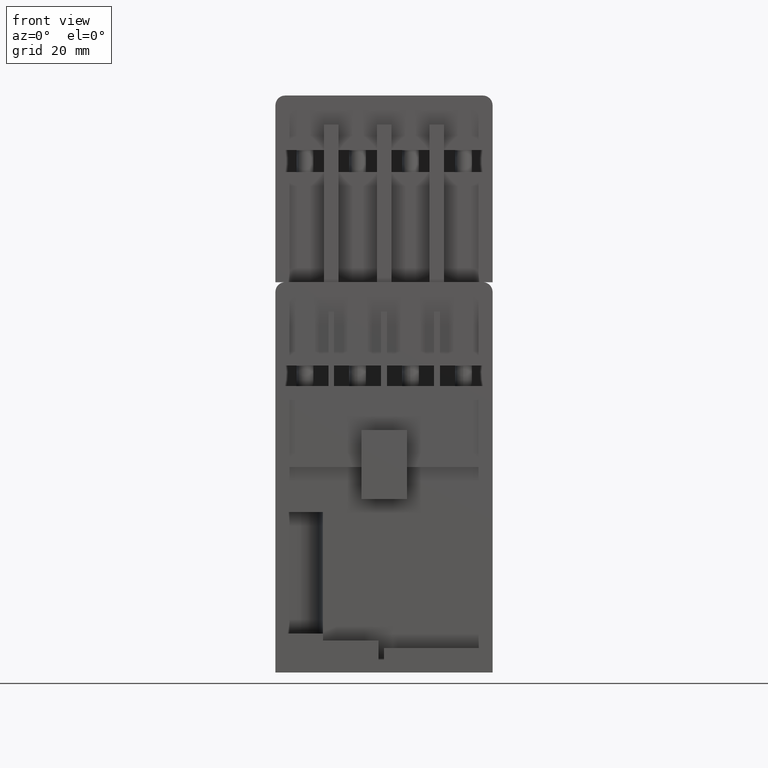
[diagram: clean part render]
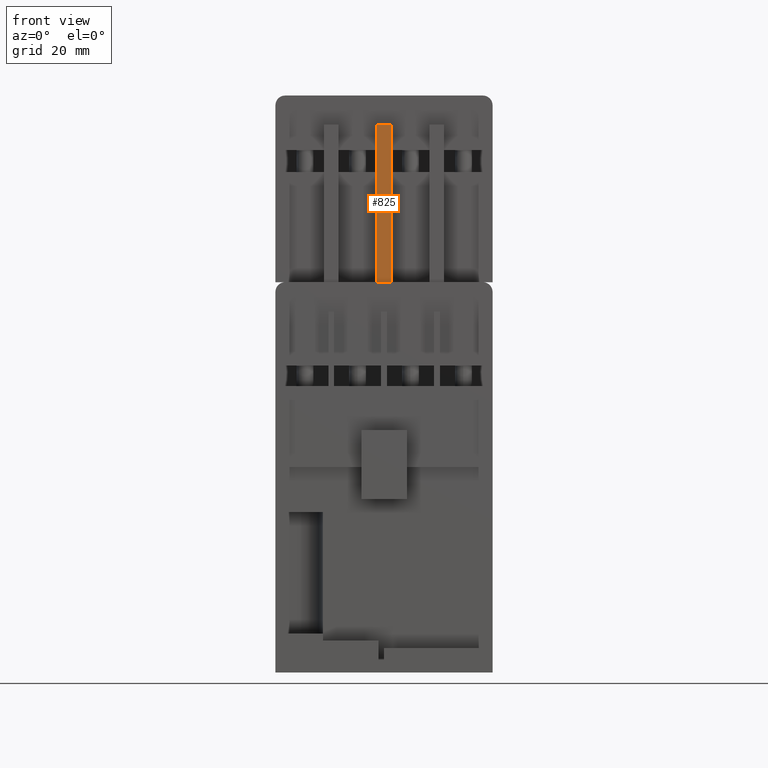
[diagram: same view with one face highlighted and labeled with its STEP entity id]
A machine part, front view. The second image highlights one B-rep face of the part: STEP entity #825.
In plain terms, the highlighted planar face has unit normal (0, 1, 0).
Its self-contained STEP definition (entity closure, byte-faithful):
#825=ADVANCED_FACE('',(#1920),#1404,.F.);
#1404=PLANE('',#12318);
#1920=FACE_OUTER_BOUND('',#2593,.T.);
#2593=EDGE_LOOP('',(#5329,#5330,#5331,#5332));
#5329=ORIENTED_EDGE('',*,*,#7453,.T.);
#5330=ORIENTED_EDGE('',*,*,#8598,.T.);
#5331=ORIENTED_EDGE('',*,*,#8557,.T.);
#5332=ORIENTED_EDGE('',*,*,#8599,.F.);
#6359=VERTEX_POINT('',#15777);
#6360=VERTEX_POINT('',#15779);
#7131=VERTEX_POINT('',#18037);
#7132=VERTEX_POINT('',#18039);
#7453=EDGE_CURVE('',#6360,#6359,#9056,.T.);
#8557=EDGE_CURVE('',#7131,#7132,#9978,.T.);
#8598=EDGE_CURVE('',#6359,#7131,#10019,.T.);
#8599=EDGE_CURVE('',#6360,#7132,#10020,.T.);
#9056=LINE('',#15778,#10407);
#9978=LINE('',#18040,#11329);
#10019=LINE('',#18117,#11370);
#10020=LINE('',#18119,#11371);
#10407=VECTOR('',#12648,1.);
#11329=VECTOR('',#14704,1.);
#11370=VECTOR('',#14777,1.);
#11371=VECTOR('',#14780,1.);
#12318=AXIS2_PLACEMENT_3D('',#18120,#14781,#14782);
#12648=DIRECTION('',(1.,0.,0.));
#14704=DIRECTION('',(-1.,0.,0.));
#14777=DIRECTION('',(0.,0.,1.));
#14780=DIRECTION('',(0.,0.,1.));
#14781=DIRECTION('',(0.,1.,0.));
#14782=DIRECTION('',(0.,0.,1.));
#15777=CARTESIAN_POINT('',(1.5,-24.1999999999999,75.5));
#15778=CARTESIAN_POINT('',(1.5,-24.1999999999999,75.5000000000006));
#15779=CARTESIAN_POINT('',(-1.5,-24.1999999999999,75.5));
#18037=CARTESIAN_POINT('',(1.5,-24.1999999999999,108.));
#18039=CARTESIAN_POINT('',(-1.5,-24.1999999999999,108.));
#18040=CARTESIAN_POINT('',(1.5,-24.1999999999999,108.));
#18117=CARTESIAN_POINT('',(1.5,-24.1999999999999,72.25));
#18119=CARTESIAN_POINT('',(-1.5,-24.1999999999999,72.25));
#18120=CARTESIAN_POINT('',(1.5,-24.1999999999999,72.25));